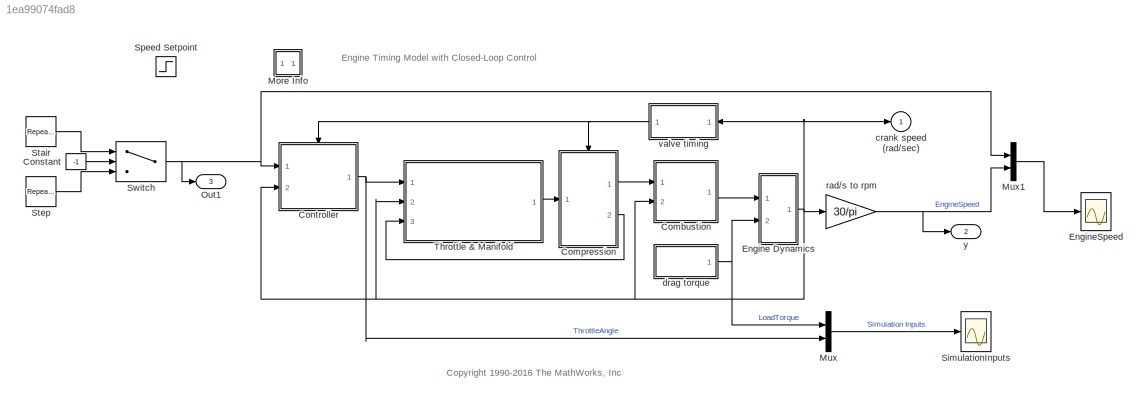
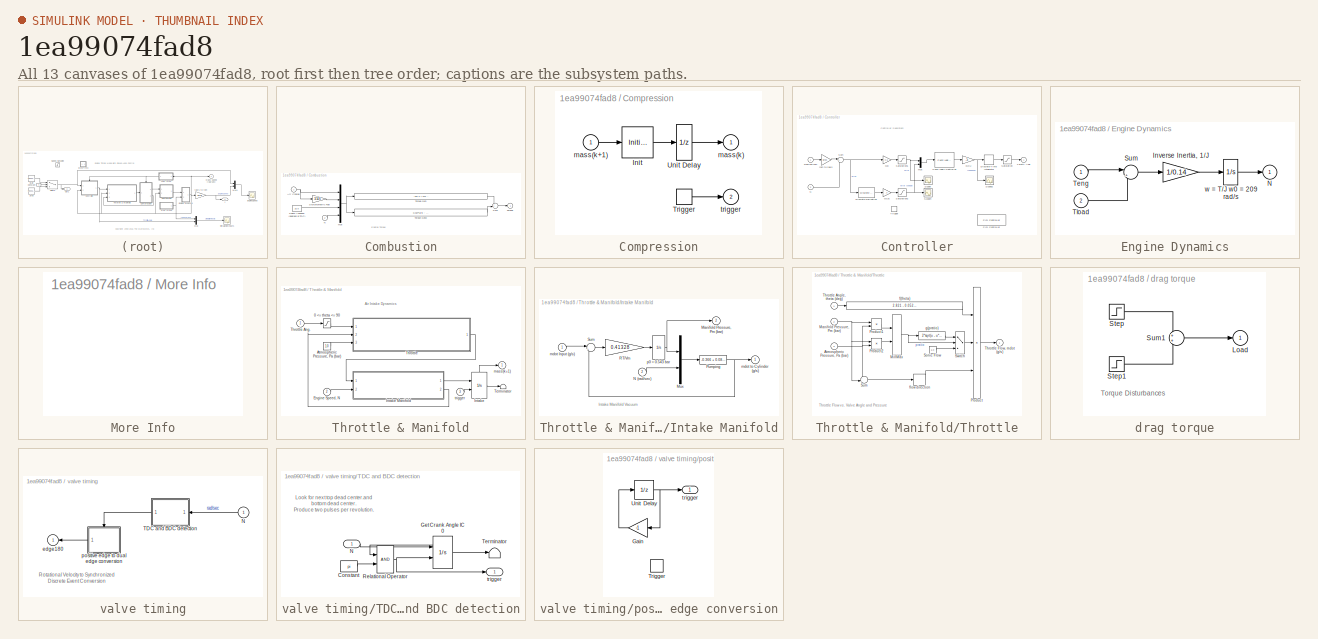
[diagram: thumbnail index - all 13 canvases of the model, root first then tree order]
MODEL slx_1ea99074fad8
KIND model
CONFIG AbsTol = 1e-6
CONFIG EnableMultiTasking = off
CONFIG FixedStep = 0.0001
CONFIG MaxStep = auto
CONFIG MinStep = auto
CONFIG PreLoadFcn = Kp =0.0614; Ki = 0.0723;
CONFIG RelTol = 1e-3
CONFIG SampleTimeConstraint = Unconstrained
CONFIG Solver = FixedStepAuto
CONFIG SolverName = FixedStepAuto
CONFIG StartTime = 0.0
CONFIG StopTime = 30
BLOCK [SubSystem] Combustion
  Ports = [2, 1]
  RequestExecContextInheritance = off
BLOCK [Inport] Combustion/Air Charge
  IconDisplay = Port number
BLOCK [Mux] Combustion/Mux
  DisplayOption = bar
  Ports = [4, 1]
BLOCK [Inport] Combustion/N
  IconDisplay = Port number
  Port = 2
BLOCK [Constant] Combustion/Spark Advance (degrees BTDC)
  Value = 15.0
BLOCK [Gain] Combustion/Stoichiometric Fuel
  Gain = 1/14.6
BLOCK [Sum] Combustion/Sum
  IconShape = round
  Ports = [2, 1]
BLOCK [Outport] Combustion/Torque
  IconDisplay = Port number
  InitialOutput = 0
BLOCK [Fcn] Combustion/Torque Gen
  Expr = -181.3 + 379.36*u[1] + 21.91*u[1]/u[2] - (0.85*u[1]*u[1])/(u[2]*u[2]) + 0.26*u[3] - 0.0028*u[3]*u[3]
BLOCK [Fcn] Combustion/Torque Gen2
  Expr = 0.027*u[4] - 0.000107*u[4]*u[4] + 0.00048*u[4]*u[3] + 2.55*u[3]*u[1] - 0.05*u[3]*u[3]*u[1]
BLOCK [SubSystem] Compression
  Ports = [1, 2, 0, 1]
  RequestExecContextInheritance = off
  TreatAsAtomicUnit = on
BLOCK [InitialCondition] Compression/Init
  Value = 0.152
BLOCK [TriggerPort] Compression/Trigger
  Ports = [0, 1]
  ShowOutputPort = on
  TriggerType = either
  VariantControl = Variant
BLOCK [UnitDelay] Compression/Unit Delay
  HasFrameUpgradeWarning = on
  InitialCondition = 0.152
  SampleTime = -1
BLOCK [Outport] Compression/mass(k)
  IconDisplay = Port number
  InitialOutput = 0.152
BLOCK [Inport] Compression/mass(k+1)
  IconDisplay = Port number
BLOCK [Outport] Compression/trigger
  IconDisplay = Port number
  InitialOutput = -1
  Port = 2
BLOCK [Constant] Constant
  Value = -1
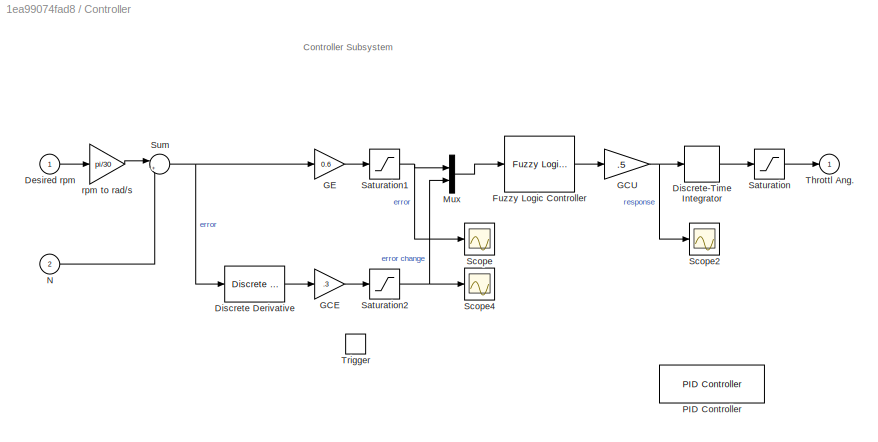
BLOCK [SubSystem] Controller
  Ports = [2, 1, 0, 1]
  RequestExecContextInheritance = off
  TreatAsAtomicUnit = on
BLOCK [Inport] Controller/Desired rpm
  IconDisplay = Port number
BLOCK [Reference] Controller/Discrete Derivative  REF=simulink/Discrete/Discrete Derivative
  Ports = [1, 1]
  SourceBlock = simulink/Discrete/Discrete Derivative
  SourceProductBaseCode = SL
  SourceProductName = Simulink
  SourceType = Discrete Derivative
BLOCK [DiscreteIntegrator] Controller/Discrete-Time Integrator
  ICPrevOutput = DiscIntNeverNeededParam
  ICPrevScaledInput = DiscIntNeverNeededParam
  InitialCondition = 5
  InitialConditionSetting = Auto
  Ports = [1, 1]
  SampleTime = -1
BLOCK [Reference] Controller/Fuzzy Logic Controller  REF=fuzblock/Fuzzy Logic   (lib defined in mdl_858b3b3e7478)
Controller
  Ports = [1, 1]
  SourceBlock = fuzblock/Fuzzy Logic \nController
  SourceProductBaseCode = FL
  SourceProductName = Fuzzy Logic Toolbox
  SourceType = Fuzzy Inference System
BLOCK [Gain] Controller/GCE 
  Gain = .3
  OutDataTypeStr = Inherit: Inherit via internal rule
  ParamDataTypeStr = Inherit: Inherit via internal rule
  SaturateOnIntegerOverflow = off
BLOCK [Gain] Controller/GCU
  Gain = .5
  OutDataTypeStr = Inherit: Inherit via internal rule
  ParamDataTypeStr = Inherit: Inherit via internal rule
  SaturateOnIntegerOverflow = off
BLOCK [Gain] Controller/GE
  Gain = 0.6
  OutDataTypeStr = Inherit: Inherit via internal rule
  ParamDataTypeStr = Inherit: Inherit via internal rule
  SaturateOnIntegerOverflow = off
BLOCK [Mux] Controller/Mux
  DisplayOption = bar
  Inputs = 2
  Ports = [2, 1]
BLOCK [Inport] Controller/N
  IconDisplay = Port number
  Port = 2
BLOCK [Reference] Controller/PID Controller  REF=simulink/Continuous/PID Controller
  Ports = [1, 1]
  SourceBlock = simulink/Continuous/PID Controller
  SourceProductBaseCode = SL
  SourceProductName = Simulink
  SourceType = PID 1dof
BLOCK [Saturate] Controller/Saturation
  InputPortMap = u0
  LowerLimit = 1
  Ports = [1, 1]
  RndMeth = Ceiling
  UpperLimit = 70
BLOCK [Saturate] Controller/Saturation1
  InputPortMap = u0
  LowerLimit = -100
  Ports = [1, 1]
  UpperLimit = 100
BLOCK [Saturate] Controller/Saturation2
  InputPortMap = u0
  LowerLimit = -100
  Ports = [1, 1]
  UpperLimit = 100
BLOCK [Scope] Controller/Scope
  Floating = off
  NumInputPorts = 1
  Ports = [1]
  ScopeSpecificationString = Simulink.scopes.TimeScopeBlockCfg('CurrentConfiguration', extmgr.ConfigurationSet(extmgr.Configuration('Core','General UI',true),extmgr.Configuration('Core','Source UI',true),extmgr.Configuration('Sources','WiredSimulink',true,'DataLoggingVariableName','ScopeData1'),extmgr.Configuration('Visuals','Time Domain',true,'SerializedDisplays',{struct('MinYLimReal','-11.46506','MaxYLimReal','75.21824','YL...<+1422ch>
BLOCK [Scope] Controller/Scope2
  Floating = off
  NumInputPorts = 1
  Ports = [1]
  ScopeSpecificationString = Simulink.scopes.TimeScopeBlockCfg('CurrentConfiguration', extmgr.ConfigurationSet(extmgr.Configuration('Core','General UI',true),extmgr.Configuration('Core','Source UI',true),extmgr.Configuration('Sources','WiredSimulink',true,'DataLoggingVariableName','ScopeData1'),extmgr.Configuration('Visuals','Time Domain',true,'SerializedDisplays',{struct('MinYLimReal','-125.00000','MaxYLimReal','125.00000','...<+1707ch>
BLOCK [Scope] Controller/Scope4
  Floating = off
  NumInputPorts = 1
  Ports = [1]
  ScopeSpecificationString = Simulink.scopes.TimeScopeBlockCfg('CurrentConfiguration', extmgr.ConfigurationSet(extmgr.Configuration('Core','General UI',true),extmgr.Configuration('Core','Source UI',true),extmgr.Configuration('Sources','WiredSimulink',true,'DataLoggingVariableName','ScopeData3'),extmgr.Configuration('Visuals','Time Domain',true,'SerializedDisplays',{struct('MinYLimReal','-125.00000','MaxYLimReal','125.00000','...<+1438ch>
BLOCK [Sum] Controller/Sum
  IconShape = round
  Inputs = |+-
  Ports = [2, 1]
BLOCK [Outport] Controller/Throttl Ang.
  IconDisplay = Port number
  InitialOutput = 8.973
BLOCK [TriggerPort] Controller/Trigger
  Ports = []
  TriggerType = either
  VariantControl = Variant
BLOCK [Gain] Controller/rpm to rad//s
  Gain = pi/30
BLOCK [SubSystem] Engine Dynamics
  Ports = [2, 1]
  RequestExecContextInheritance = off
BLOCK [Gain] Engine Dynamics/Inverse Inertia, 1//J
  Gain = 1/0.14
BLOCK [Outport] Engine Dynamics/N
  IconDisplay = Port number
  InitialOutput = 0
BLOCK [Sum] Engine Dynamics/Sum
  IconShape = round
  Inputs = |+-
  Ports = [2, 1]
BLOCK [Inport] Engine Dynamics/Teng
  IconDisplay = Port number
BLOCK [Inport] Engine Dynamics/Tload
  IconDisplay = Port number
  Port = 2
BLOCK [Integrator] Engine Dynamics/w = T//J w0 = 209 rad//s
  InitialCondition = 209.48
  Ports = [1, 1]
BLOCK [Scope] EngineSpeed
  Floating = off
  NumInputPorts = 1
  Ports = [1]
  ScopeSpecificationString = Simulink.scopes.TimeScopeBlockCfg('CurrentConfiguration', extmgr.ConfigurationSet(extmgr.Configuration('Core','General UI',true),extmgr.Configuration('Core','Source UI',true),extmgr.Configuration('Sources','WiredSimulink',true,'DataLoggingVariableName','N','DataLoggingSaveFormat','Structure','DataLoggingDecimation','1'),extmgr.Configuration('Visuals','Time Domain',true,'TimeAxisLabels','All','Seri...<+1745ch>
BLOCK [SubSystem] More Info
  OpenFcn = showdemo(bdroot(gcb))
  Ports = []
  RequestExecContextInheritance = off
BLOCK [Mux] Mux
  DisplayOption = bar
  Inputs = 2
  Ports = [2, 1]
BLOCK [Mux] Mux1
  DisplayOption = bar
  Inputs = 2
  Ports = [2, 1]
BLOCK [Outport] Out1
  IconDisplay = Port number
  Port = 3
BLOCK [Scope] SimulationInputs
  Floating = off
  NumInputPorts = 1
  Ports = [1]
  ScopeSpecificationString = Simulink.scopes.TimeScopeBlockCfg('CurrentConfiguration', extmgr.ConfigurationSet(extmgr.Configuration('Core','General UI',true),extmgr.Configuration('Core','Source UI',true),extmgr.Configuration('Sources','WiredSimulink',true,'DataLoggingVariableName','Tth','DataLoggingSaveFormat','Structure','DataLoggingDecimation','1'),extmgr.Configuration('Visuals','Time Domain',true,'TimeAxisLabels','All','Se...<+1653ch>
BLOCK [Step] Speed Setpoint
  After = 3000
  Before = 2000
  SampleTime = 0
  Time = 5
BLOCK [Reference] Stair  REF=simulink/Sources/Repeating
Sequence
Stair
  Ports = [0, 1]
  SourceBlock = simulink/Sources/Repeating\nSequence\nStair
  SourceProductBaseCode = SL
  SourceProductName = Simulink
  SourceType = Repeating Sequence Stair
BLOCK [Reference] Step  REF=simulink/Sources/Repeating
Sequence
Stair
  Ports = [0, 1]
  SourceBlock = simulink/Sources/Repeating\nSequence\nStair
  SourceProductBaseCode = SL
  SourceProductName = Simulink
  SourceType = Repeating Sequence Stair
BLOCK [Switch] Switch
  Criteria = u2 > Threshold
  InputSameDT = off
  SaturateOnIntegerOverflow = off
BLOCK [SubSystem] Throttle & Manifold
  Ports = [3, 1]
  RequestExecContextInheritance = off
BLOCK [Saturate] Throttle & Manifold/0 <= theta <= 90
  InputPortMap = u0
  LowerLimit = 0
  Ports = [1, 1]
  UpperLimit = 90
BLOCK [Constant] Throttle & Manifold/Atmospheric Pressure, Pa (bar)
  Value = 1.0
BLOCK [Inport] Throttle & Manifold/Engine Speed, N
  IconDisplay = Port number
  Port = 2
BLOCK [Integrator] Throttle & Manifold/Intake
  ExternalReset = either
  Ports = [2, 1, 0, 0, 1]
  ShowStatePort = on
BLOCK [SubSystem] Throttle & Manifold/Intake Manifold
  Ports = [2, 2]
  RequestExecContextInheritance = off
BLOCK [Outport] Throttle & Manifold/Intake Manifold/Manifold Pressure, Pm (bar)
  IconDisplay = Port number
  InitialOutput = 0
  Port = 2
BLOCK [Mux] Throttle & Manifold/Intake Manifold/Mux
  DisplayOption = bar
  Inputs = 2
  Ports = [2, 1]
BLOCK [Inport] Throttle & Manifold/Intake Manifold/N (rad//sec)
  IconDisplay = Port number
  Port = 2
BLOCK [Fcn] Throttle & Manifold/Intake Manifold/Pumping
  Expr = -0.366 + 0.08979*u[1]*u[2] - 0.0337*u[2]*u[1]*u[1] + 0.0001*u[1]*u[2]*u[2]
BLOCK [Gain] Throttle & Manifold/Intake Manifold/RT//Vm
  Gain = 0.41328
BLOCK [Sum] Throttle & Manifold/Intake Manifold/Sum
  IconShape = round
  Inputs = |+-
  Ports = [2, 1]
BLOCK [Inport] Throttle & Manifold/Intake Manifold/mdot Input (g//s)
  IconDisplay = Port number
BLOCK [Outport] Throttle & Manifold/Intake Manifold/mdot to Cylinder (g//s)
  IconDisplay = Port number
  InitialOutput = 0
BLOCK [Integrator] Throttle & Manifold/Intake Manifold/p0 = 0.543 bar
  InitialCondition = .543
  Ports = [1, 1]
BLOCK [Terminator] Throttle & Manifold/Terminator
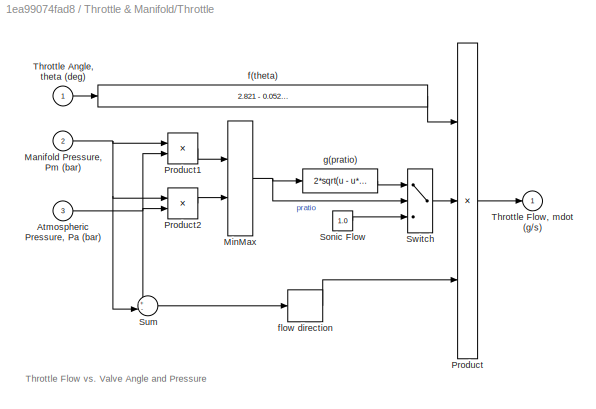
BLOCK [SubSystem] Throttle & Manifold/Throttle
  Ports = [3, 1]
  RequestExecContextInheritance = off
BLOCK [Inport] Throttle & Manifold/Throttle Ang.
  IconDisplay = Port number
BLOCK [Inport] Throttle & Manifold/Throttle/Atmospheric Pressure, Pa (bar) 
  IconDisplay = Port number
  Port = 3
BLOCK [Inport] Throttle & Manifold/Throttle/Manifold Pressure, Pm (bar)
  IconDisplay = Port number
  Port = 2
BLOCK [MinMax] Throttle & Manifold/Throttle/MinMax
  Inputs = 2
  Ports = [2, 1]
BLOCK [Product] Throttle & Manifold/Throttle/Product
  Inputs = 3
  Ports = [3, 1]
BLOCK [Product] Throttle & Manifold/Throttle/Product1
  Inputs = */
  Ports = [2, 1]
BLOCK [Product] Throttle & Manifold/Throttle/Product2
  Inputs = /*
  Ports = [2, 1]
BLOCK [Constant] Throttle & Manifold/Throttle/Sonic Flow 
  Value = 1.0
BLOCK [Sum] Throttle & Manifold/Throttle/Sum
  IconShape = round
  Inputs = +-|
  Ports = [2, 1]
BLOCK [Switch] Throttle & Manifold/Throttle/Switch
  Threshold = 0.5
BLOCK [Inport] Throttle & Manifold/Throttle/Throttle Angle, theta (deg)
  IconDisplay = Port number
BLOCK [Outport] Throttle & Manifold/Throttle/Throttle Flow, mdot (g//s)
  IconDisplay = Port number
  InitialOutput = 0
BLOCK [Fcn] Throttle & Manifold/Throttle/f(theta)
  Expr = 2.821 - 0.05231*u + 0.10299*u*u - 0.00063*u*u*u
BLOCK [Signum] Throttle & Manifold/Throttle/flow direction
BLOCK [Fcn] Throttle & Manifold/Throttle/g(pratio)
  Expr = 2*sqrt(u - u*u)
BLOCK [Outport] Throttle & Manifold/mass(k+1)
  IconDisplay = Port number
  InitialOutput = 0
BLOCK [Inport] Throttle & Manifold/trigger
  IconDisplay = Port number
  Port = 3
BLOCK [Outport] crank speed (rad//sec)
  IconDisplay = Port number
  InitialOutput = 0
BLOCK [SubSystem] drag torque
  Ports = [0, 1]
  RequestExecContextInheritance = off
BLOCK [Outport] drag torque/Load
  IconDisplay = Port number
  InitialOutput = 0
BLOCK [Step] drag torque/Step
  After = 20
  Before = 25
  SampleTime = 0
  Time = 2
BLOCK [Step] drag torque/Step1
  After = 5
  SampleTime = 0
  Time = 8
BLOCK [Sum] drag torque/Sum1
  IconShape = round
  Ports = [2, 1]
BLOCK [Gain] rad//s to rpm
  Gain = 30/pi
BLOCK [SubSystem] valve timing
  Ports = [1, 1]
  RequestExecContextInheritance = off
BLOCK [Inport] valve timing/N
  IconDisplay = Port number
BLOCK [SubSystem] valve timing/TDC and BDC detection
  Ports = [1, 1]
  RequestExecContextInheritance = off
BLOCK [Constant] valve timing/TDC and BDC detection/Constant
  Value = pi
BLOCK [Integrator] valve timing/TDC and BDC detection/Get Crank Angle IC 0
  ExternalReset = rising
  Ports = [2, 1, 0, 0, 1]
  ShowStatePort = on
BLOCK [Inport] valve timing/TDC and BDC detection/N
  IconDisplay = Port number
BLOCK [RelationalOperator] valve timing/TDC and BDC detection/Relational Operator
  OutDataTypeStr = boolean
  Ports = [2, 1]
BLOCK [Terminator] valve timing/TDC and BDC detection/Terminator
BLOCK [Outport] valve timing/TDC and BDC detection/trigger
  IconDisplay = Port number
  InitialOutput = 0
BLOCK [Outport] valve timing/edge180
  IconDisplay = Port number
  InitialOutput = -1
BLOCK [SubSystem] valve timing/positive edge to dual edge conversion
  Ports = [0, 1, 0, 1]
  RequestExecContextInheritance = off
  TreatAsAtomicUnit = on
BLOCK [Gain] valve timing/positive edge to dual edge conversion/Gain
  Gain = -1
BLOCK [TriggerPort] valve timing/positive edge to dual edge conversion/Trigger
  Ports = []
  VariantControl = Variant
BLOCK [UnitDelay] valve timing/positive edge to dual edge conversion/Unit Delay
  HasFrameUpgradeWarning = on
  InitialCondition = 1
  SampleTime = -1
BLOCK [Outport] valve timing/positive edge to dual edge conversion/trigger
  IconDisplay = Port number
  InitialOutput = -1
BLOCK [Outport] y 
  IconDisplay = Port number
  Port = 2
ANNOTATION (root): <copyright redacted>
ANNOTATION (root): Engine Timing Model with Closed-Loop Control
ANNOTATION Combustion: Engine Torque
ANNOTATION Controller: Controller Subsystem
ANNOTATION Throttle & Manifold: Air Intake Dynamics
ANNOTATION Throttle & Manifold/Intake Manifold: Intake Manifold Vacuum
ANNOTATION Throttle & Manifold/Throttle: Throttle Flow vs. Valve Angle and Pressure
ANNOTATION drag torque: Torque Disturbances
ANNOTATION valve timing: Rotational Velocity to Synchronized Discrete Event Conversion
ANNOTATION valve timing/TDC and BDC detection: Look for next top dead center.and bottom dead center. Produce two pulses per revolution.
NET Combustion/Air Charge:1 -> Combustion/Mux:1, Combustion/Stoichiometric Fuel:1
NET Combustion/Mux:1 -> Combustion/Torque Gen2:1, Combustion/Torque Gen:1
LINE Combustion/N:1 -> Combustion/Mux:4
LINE Combustion/Spark Advance (degrees BTDC):1 -> Combustion/Mux:3
LINE Combustion/Stoichiometric Fuel:1 -> Combustion/Mux:2
LINE Combustion/Sum:1 -> Combustion/Torque:1
LINE Combustion/Torque Gen2:1 -> Combustion/Sum:2
LINE Combustion/Torque Gen:1 -> Combustion/Sum:1
LINE Combustion:1 -> Engine Dynamics:1
LINE Compression/Init:1 -> Compression/Unit Delay:1
LINE Compression/Trigger:1 -> Compression/trigger:1
LINE Compression/Unit Delay:1 -> Compression/mass(k):1
LINE Compression/mass(k+1):1 -> Compression/Init:1
LINE Compression:1 -> Combustion:1
LINE Compression:2 -> Throttle & Manifold:3
LINE Constant:1 -> Switch:2
LINE Controller/Desired rpm:1 -> Controller/rpm to rad//s:1
LINE Controller/Discrete Derivative:1 -> Controller/GCE :1
LINE Controller/Discrete-Time Integrator:1 -> Controller/Saturation:1
LINE Controller/Fuzzy Logic Controller:1 -> Controller/GCU:1
LINE Controller/GCE :1 -> Controller/Saturation2:1
NET Controller/GCU:1 -> Controller/Discrete-Time Integrator:1, Controller/Scope2:1
LINE Controller/GE:1 -> Controller/Saturation1:1
LINE Controller/Mux:1 -> Controller/Fuzzy Logic Controller:1
LINE Controller/N:1 -> Controller/Sum:2
NET Controller/Saturation1:1 -> Controller/Mux:1, Controller/Scope:1
NET Controller/Saturation2:1 -> Controller/Mux:2, Controller/Scope4:1
LINE Controller/Saturation:1 -> Controller/Throttl Ang.:1
NET Controller/Sum:1 -> Controller/Discrete Derivative:1, Controller/GE:1
LINE Controller/rpm to rad//s:1 -> Controller/Sum:1
NET Controller:1 -> Mux:2, Throttle & Manifold:1
LINE Engine Dynamics/Inverse Inertia, 1//J:1 -> Engine Dynamics/w = T//J w0 = 209 rad//s:1
LINE Engine Dynamics/Sum:1 -> Engine Dynamics/Inverse Inertia, 1//J:1
LINE Engine Dynamics/Teng:1 -> Engine Dynamics/Sum:1
LINE Engine Dynamics/Tload:1 -> Engine Dynamics/Sum:2
LINE Engine Dynamics/w = T//J w0 = 209 rad//s:1 -> Engine Dynamics/N:1
NET Engine Dynamics:1 -> Combustion:2, Controller:2, Throttle & Manifold:2, crank speed (rad//sec):1, rad//s to rpm:1, valve timing:1
LINE Mux1:1 -> EngineSpeed:1
LINE Mux:1 -> SimulationInputs:1
LINE Stair:1 -> Switch:1
LINE Step:1 -> Switch:3
NET Switch:1 -> Controller:1, Mux1:1, Out1:1
LINE Throttle & Manifold/0 <= theta <= 90:1 -> Throttle & Manifold/Throttle:1
LINE Throttle & Manifold/Atmospheric Pressure, Pa (bar):1 -> Throttle & Manifold/Throttle:3
LINE Throttle & Manifold/Engine Speed, N:1 -> Throttle & Manifold/Intake Manifold:2
LINE Throttle & Manifold/Intake Manifold/Mux:1 -> Throttle & Manifold/Intake Manifold/Pumping:1
LINE Throttle & Manifold/Intake Manifold/N (rad//sec):1 -> Throttle & Manifold/Intake Manifold/Mux:2
NET Throttle & Manifold/Intake Manifold/Pumping:1 -> Throttle & Manifold/Intake Manifold/Sum:2, Throttle & Manifold/Intake Manifold/mdot to Cylinder (g//s):1
LINE Throttle & Manifold/Intake Manifold/RT//Vm:1 -> Throttle & Manifold/Intake Manifold/p0 = 0.543 bar:1
LINE Throttle & Manifold/Intake Manifold/Sum:1 -> Throttle & Manifold/Intake Manifold/RT//Vm:1
LINE Throttle & Manifold/Intake Manifold/mdot Input (g//s):1 -> Throttle & Manifold/Intake Manifold/Sum:1
NET Throttle & Manifold/Intake Manifold/p0 = 0.543 bar:1 -> Throttle & Manifold/Intake Manifold/Manifold Pressure, Pm (bar):1, Throttle & Manifold/Intake Manifold/Mux:1
LINE Throttle & Manifold/Intake Manifold:1 -> Throttle & Manifold/Intake:1
LINE Throttle & Manifold/Intake Manifold:2 -> Throttle & Manifold/Throttle:2
LINE Throttle & Manifold/Intake:1 -> Throttle & Manifold/Terminator:1
LINE Throttle & Manifold/Intake:state -> Throttle & Manifold/mass(k+1):1
LINE Throttle & Manifold/Throttle Ang.:1 -> Throttle & Manifold/0 <= theta <= 90:1
NET Throttle & Manifold/Throttle/Atmospheric Pressure, Pa (bar) :1 -> Throttle & Manifold/Throttle/Product1:2, Throttle & Manifold/Throttle/Product2:2, Throttle & Manifold/Throttle/Sum:1
NET Throttle & Manifold/Throttle/Manifold Pressure, Pm (bar):1 -> Throttle & Manifold/Throttle/Product1:1, Throttle & Manifold/Throttle/Product2:1, Throttle & Manifold/Throttle/Sum:2
NET Throttle & Manifold/Throttle/MinMax:1 -> Throttle & Manifold/Throttle/Switch:2, Throttle & Manifold/Throttle/g(pratio):1
LINE Throttle & Manifold/Throttle/Product1:1 -> Throttle & Manifold/Throttle/MinMax:1
LINE Throttle & Manifold/Throttle/Product2:1 -> Throttle & Manifold/Throttle/MinMax:2
LINE Throttle & Manifold/Throttle/Product:1 -> Throttle & Manifold/Throttle/Throttle Flow, mdot (g//s):1
LINE Throttle & Manifold/Throttle/Sonic Flow :1 -> Throttle & Manifold/Throttle/Switch:3
LINE Throttle & Manifold/Throttle/Sum:1 -> Throttle & Manifold/Throttle/flow direction:1
LINE Throttle & Manifold/Throttle/Switch:1 -> Throttle & Manifold/Throttle/Product:2
LINE Throttle & Manifold/Throttle/Throttle Angle, theta (deg):1 -> Throttle & Manifold/Throttle/f(theta):1
LINE Throttle & Manifold/Throttle/f(theta):1 -> Throttle & Manifold/Throttle/Product:1
LINE Throttle & Manifold/Throttle/flow direction:1 -> Throttle & Manifold/Throttle/Product:3
LINE Throttle & Manifold/Throttle/g(pratio):1 -> Throttle & Manifold/Throttle/Switch:1
LINE Throttle & Manifold/Throttle:1 -> Throttle & Manifold/Intake Manifold:1
LINE Throttle & Manifold/trigger:1 -> Throttle & Manifold/Intake:2
LINE Throttle & Manifold:1 -> Compression:1
LINE drag torque/Step1:1 -> drag torque/Sum1:2
LINE drag torque/Step:1 -> drag torque/Sum1:1
LINE drag torque/Sum1:1 -> drag torque/Load:1
NET drag torque:1 -> Engine Dynamics:2, Mux:1
NET rad//s to rpm:1 -> Mux1:2, y :1
LINE valve timing/N:1 -> valve timing/TDC and BDC detection:1
LINE valve timing/TDC and BDC detection/Constant:1 -> valve timing/TDC and BDC detection/Relational Operator:2
LINE valve timing/TDC and BDC detection/Get Crank Angle IC 0:1 -> valve timing/TDC and BDC detection/Terminator:1
LINE valve timing/TDC and BDC detection/Get Crank Angle IC 0:state -> valve timing/TDC and BDC detection/Relational Operator:1
LINE valve timing/TDC and BDC detection/N:1 -> valve timing/TDC and BDC detection/Get Crank Angle IC 0:1
NET valve timing/TDC and BDC detection/Relational Operator:1 -> valve timing/TDC and BDC detection/Get Crank Angle IC 0:2, valve timing/TDC and BDC detection/trigger:1
LINE valve timing/TDC and BDC detection:1 -> valve timing/positive edge to dual edge conversion:trigger
LINE valve timing/positive edge to dual edge conversion/Gain:1 -> valve timing/positive edge to dual edge conversion/Unit Delay:1
NET valve timing/positive edge to dual edge conversion/Unit Delay:1 -> valve timing/positive edge to dual edge conversion/Gain:1, valve timing/positive edge to dual edge conversion/trigger:1
LINE valve timing/positive edge to dual edge conversion:1 -> valve timing/edge180:1
NET valve timing:1 -> Compression:trigger, Controller:trigger
note: NET lines group one-source signal fan-out (src -> all destinations, sorted); 1:1 wires keep LINE
